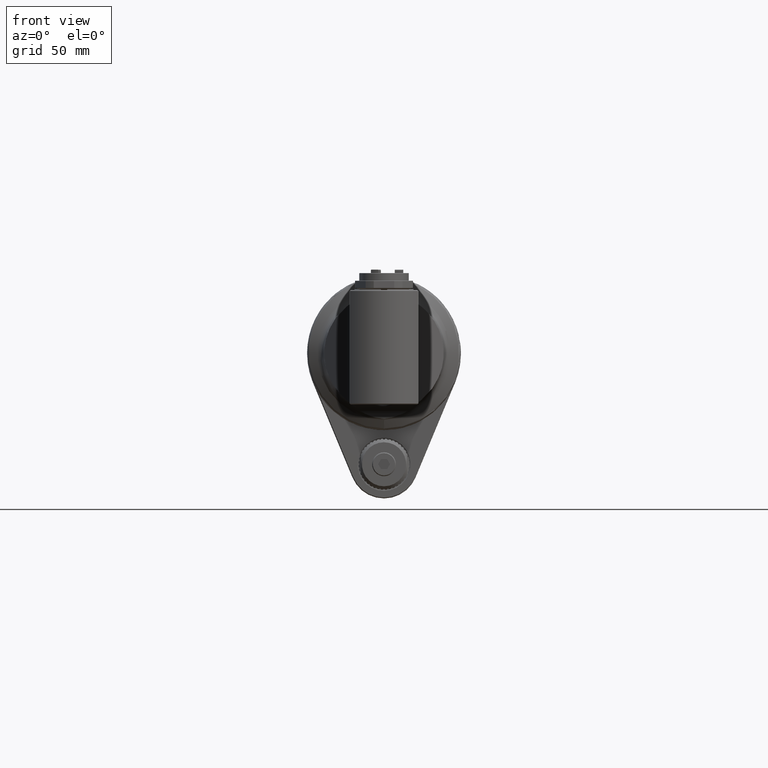
[diagram: clean part render]
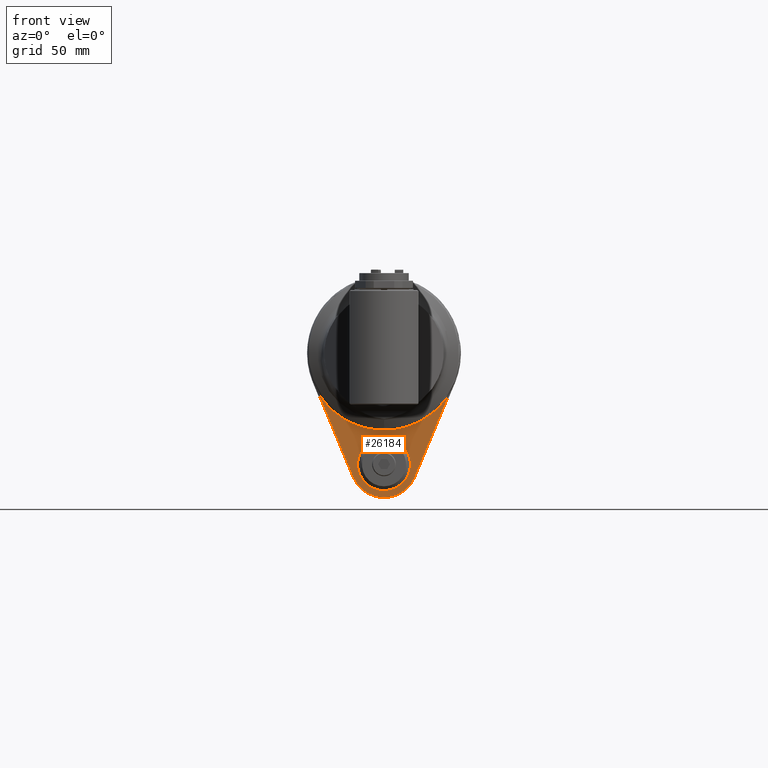
[diagram: same view with one face highlighted and labeled with its STEP entity id]
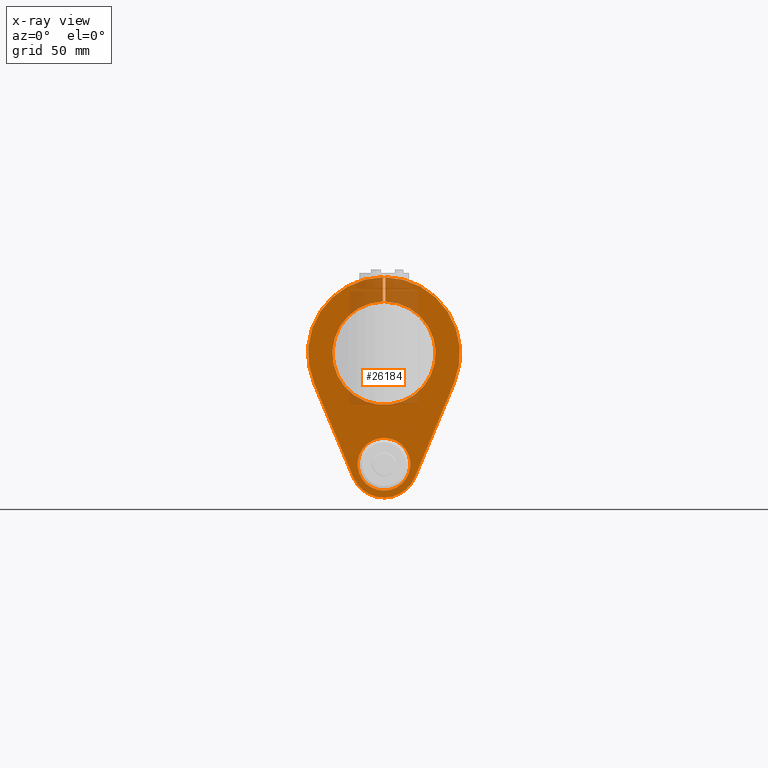
[diagram: x-ray of the same camera — body ghosted, the highlighted face saturated]
A machine part, front view. The second image highlights one B-rep face of the part: STEP entity #26184.
The next image is the same camera in x-ray: the body ghosted, the highlighted face saturated — about 15% of this face is hidden behind the body in this view.
In plain terms, the highlighted planar face has unit normal (0, 1, 0).
Its self-contained STEP definition (entity closure, byte-faithful):
#547=FACE_BOUND('',#3735,.T.);
#1123=CIRCLE('',#27904,15.44984742651);
#1124=CIRCLE('',#27906,44.49977273927);
#1125=CIRCLE('',#27907,30.19997087989);
#1126=CIRCLE('',#27908,44.49977552051);
#1127=CIRCLE('',#27909,19.49970659949);
#2208=FACE_OUTER_BOUND('',#3734,.T.);
#3734=EDGE_LOOP('',(#17502,#17503,#17504,#17505,#17506,#17507,#17508,#17509));
#3735=EDGE_LOOP('',(#17510));
#5537=LINE('',#38630,#8114);
#5538=LINE('',#38634,#8115);
#5539=LINE('',#38638,#8116);
#5540=LINE('',#38641,#8117);
#8114=VECTOR('',#30759,10.);
#8115=VECTOR('',#30762,10.);
#8116=VECTOR('',#30765,10.);
#8117=VECTOR('',#30768,10.);
#10833=VERTEX_POINT('',#38622);
#10834=VERTEX_POINT('',#38626);
#10835=VERTEX_POINT('',#38627);
#10836=VERTEX_POINT('',#38629);
#10837=VERTEX_POINT('',#38631);
#10838=VERTEX_POINT('',#38633);
#10839=VERTEX_POINT('',#38635);
#10840=VERTEX_POINT('',#38637);
#10841=VERTEX_POINT('',#38639);
#13461=EDGE_CURVE('',#10833,#10833,#1123,.T.);
#13462=EDGE_CURVE('',#10834,#10835,#1124,.T.);
#13463=EDGE_CURVE('',#10836,#10834,#5537,.T.);
#13464=EDGE_CURVE('',#10837,#10836,#1125,.T.);
#13465=EDGE_CURVE('',#10837,#10838,#5538,.T.);
#13466=EDGE_CURVE('',#10839,#10838,#1126,.T.);
#13467=EDGE_CURVE('',#10840,#10839,#5539,.T.);
#13468=EDGE_CURVE('',#10841,#10840,#1127,.T.);
#13469=EDGE_CURVE('',#10835,#10841,#5540,.T.);
#17502=ORIENTED_EDGE('',*,*,#13462,.F.);
#17503=ORIENTED_EDGE('',*,*,#13463,.F.);
#17504=ORIENTED_EDGE('',*,*,#13464,.F.);
#17505=ORIENTED_EDGE('',*,*,#13465,.T.);
#17506=ORIENTED_EDGE('',*,*,#13466,.F.);
#17507=ORIENTED_EDGE('',*,*,#13467,.F.);
#17508=ORIENTED_EDGE('',*,*,#13468,.F.);
#17509=ORIENTED_EDGE('',*,*,#13469,.F.);
#17510=ORIENTED_EDGE('',*,*,#13461,.F.);
#25229=PLANE('',#27905);
#26184=ADVANCED_FACE('',(#2208,#547),#25229,.F.);
#27904=AXIS2_PLACEMENT_3D('',#38624,#30753,#30754);
#27905=AXIS2_PLACEMENT_3D('',#38625,#30755,#30756);
#27906=AXIS2_PLACEMENT_3D('',#38628,#30757,#30758);
#27907=AXIS2_PLACEMENT_3D('',#38632,#30760,#30761);
#27908=AXIS2_PLACEMENT_3D('',#38636,#30763,#30764);
#27909=AXIS2_PLACEMENT_3D('',#38640,#30766,#30767);
#30753=DIRECTION('center_axis',(0.,-1.,0.));
#30754=DIRECTION('ref_axis',(1.,0.,2.07876044143E-13));
#30755=DIRECTION('center_axis',(0.,1.,0.));
#30756=DIRECTION('ref_axis',(1.,0.,0.));
#30757=DIRECTION('center_axis',(0.,1.,0.));
#30758=DIRECTION('ref_axis',(0.0168540102287596,0.,0.999857961082077));
#30759=DIRECTION('',(0.,0.,1.));
#30760=DIRECTION('center_axis',(0.,-1.,0.));
#30761=DIRECTION('ref_axis',(0.0248344370860896,0.,-0.999691577805183));
#30762=DIRECTION('',(0.,0.,1.));
#30763=DIRECTION('center_axis',(0.,1.,0.));
#30764=DIRECTION('ref_axis',(-0.9230769227385,0.,-0.3846153854276));
#30765=DIRECTION('',(-0.384615384615375,0.,0.923076923076927));
#30766=DIRECTION('center_axis',(0.,1.,0.));
#30767=DIRECTION('ref_axis',(0.,0.,-1.));
#30768=DIRECTION('',(-0.384615384615375,0.,-0.923076923076927));
#38622=CARTESIAN_POINT('',(-2.91941740696807E-14,2.14247022900516E-12,-80.4498474265122));
#38624=CARTESIAN_POINT('Origin',(-3.10862346895E-14,0.,-65.));
#38625=CARTESIAN_POINT('Origin',(0.,0.,0.));
#38626=CARTESIAN_POINT('',(0.74999999934199,4.65637358269979E-10,44.4934520345325));
#38627=CARTESIAN_POINT('',(41.0768181729268,-7.709388682995E-13,-17.1153409460261));
#38628=CARTESIAN_POINT('Origin',(-8.393285966166E-13,-1.541877736599E-12,
3.170797058329E-13));
#38629=CARTESIAN_POINT('',(0.749999999758383,-7.02924266349585E-10,30.1906565218963));
#38630=CARTESIAN_POINT('',(0.75,0.,11.65449913669));
#38631=CARTESIAN_POINT('',(-0.75000000002888,3.39786545048983E-10,30.1906565197908));
#38632=CARTESIAN_POINT('Origin',(-6.394883621841E-14,-3.922195901396E-12,
-4.973799050321E-13));
#38633=CARTESIAN_POINT('',(-0.749999999348788,4.62076838982845E-10,44.4934548161502));
#38634=CARTESIAN_POINT('',(-0.75,0.,23.50149913669));
#38635=CARTESIAN_POINT('',(-41.0768191833316,-1.8328706648408E-7,-17.1153413653162));
#38636=CARTESIAN_POINT('Origin',(-4.583000545653E-13,-5.968558980385E-13,
3.19744331092E-14));
#38637=CARTESIAN_POINT('',(-18.0002498631843,-1.11983142885248E-5,-72.4990188746402));
#38638=CARTESIAN_POINT('',(-35.3076923076922,0.,-30.9615384615403));
#38639=CARTESIAN_POINT('',(18.0002372588659,9.56023600463482E-7,-72.4990531477556));
#38640=CARTESIAN_POINT('Origin',(-3.28625915289E-14,1.183053655041E-12,
-65.));
#38641=CARTESIAN_POINT('',(35.3076923076922,0.,-30.9615384615402));